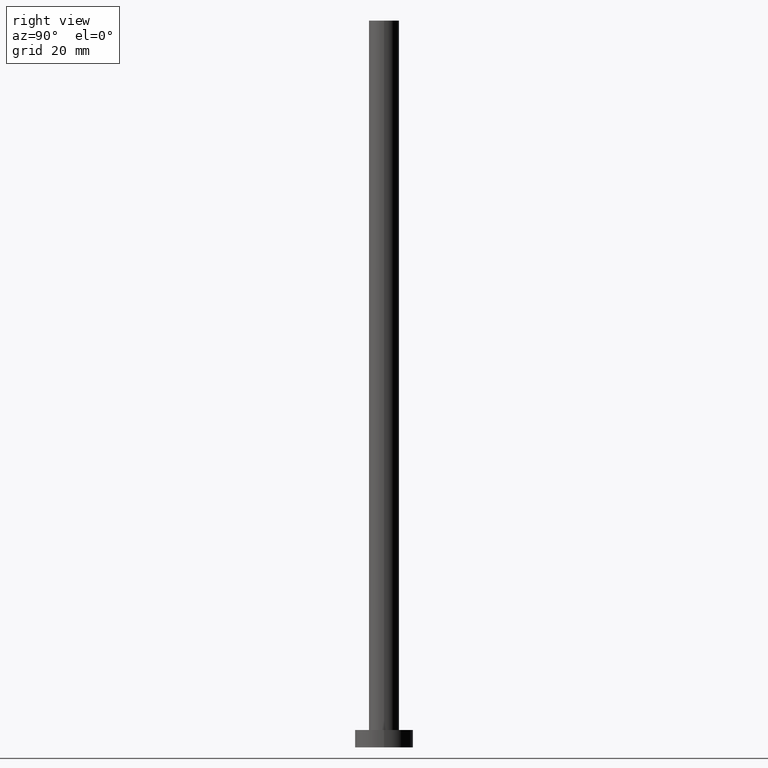
[diagram: clean part render]
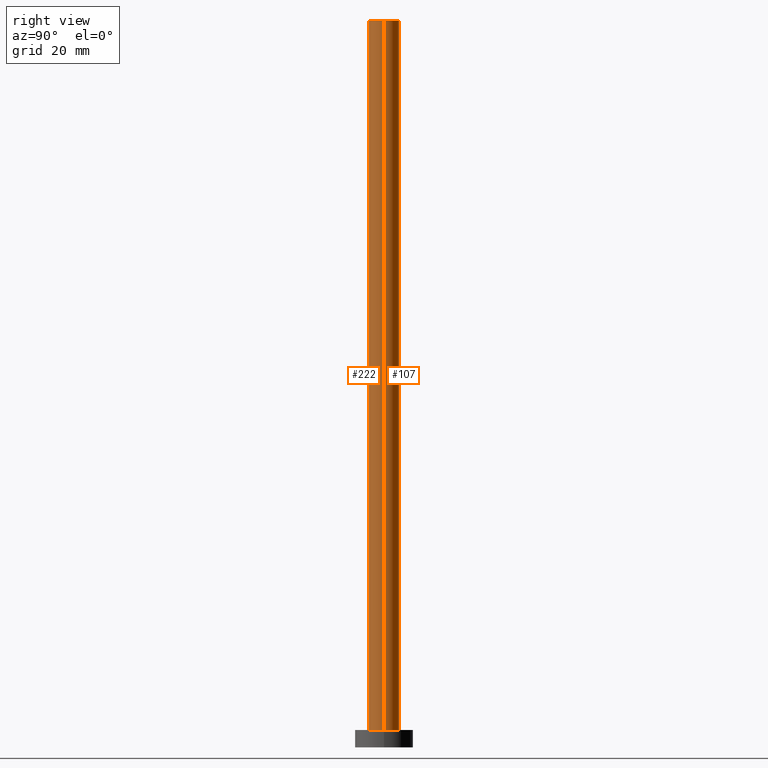
[diagram: same view with one multi-face feature highlighted, each face labeled with its STEP entity id]
A machine part, right view. The highlighted faces form ONE feature: a constant-radius fillet chain: 2 tangent blend faces with common blend radius 2.6 mm. The faces share edges in the B-rep.
Their STEP definitions:
[1] entity #107 (Cylinder):
#6 = AXIS2_PLACEMENT_3D ( 'NONE', #53, #135, #193 ) ;
#19 = DIRECTION ( 'NONE',  ( -0.000000000000000000, -0.000000000000000000, -1.000000000000000000 ) ) ;
#21 = VECTOR ( 'NONE', #19, 1000.000000000000000 ) ;
#30 = VERTEX_POINT ( 'NONE', #186 ) ;
#35 = CARTESIAN_POINT ( 'NONE',  ( -2.600000000000000089, 0.000000000000000000, 125.0000000000000000 ) ) ;
#36 = AXIS2_PLACEMENT_3D ( 'NONE', #71, #226, #130 ) ;
#37 = CARTESIAN_POINT ( 'NONE',  ( 2.600000000000000089, 3.184081677783117698E-16, 3.000000000000000000 ) ) ;
#47 = VERTEX_POINT ( 'NONE', #37 ) ;
#50 = AXIS2_PLACEMENT_3D ( 'NONE', #60, #211, #156 ) ;
#53 = CARTESIAN_POINT ( 'NONE',  ( 0.000000000000000000, 0.000000000000000000, 3.000000000000000000 ) ) ;
#60 = CARTESIAN_POINT ( 'NONE',  ( 0.000000000000000000, 0.000000000000000000, 125.0000000000000000 ) ) ;
#71 = CARTESIAN_POINT ( 'NONE',  ( 0.000000000000000000, 0.000000000000000000, 125.0000000000000000 ) ) ;
#89 = FACE_OUTER_BOUND ( 'NONE', #168, .T. ) ;
#98 = ORIENTED_EDGE ( 'NONE', *, *, #125, .F. ) ;
#107 = ADVANCED_FACE ( 'NONE', ( #89 ), #246, .T. ) ;
#108 = VECTOR ( 'NONE', #254, 1000.000000000000000 ) ;
#117 = CARTESIAN_POINT ( 'NONE',  ( 2.600000000000000089, 3.184081677783117698E-16, 125.0000000000000000 ) ) ;
#120 = ORIENTED_EDGE ( 'NONE', *, *, #167, .T. ) ;
#125 = EDGE_CURVE ( 'NONE', #185, #30, #207, .T. ) ;
#130 = DIRECTION ( 'NONE',  ( -1.000000000000000000, 0.000000000000000000, 0.000000000000000000 ) ) ;
#131 = ORIENTED_EDGE ( 'NONE', *, *, #177, .F. ) ;
#135 = DIRECTION ( 'NONE',  ( 0.000000000000000000, 0.000000000000000000, 1.000000000000000000 ) ) ;
#155 = EDGE_CURVE ( 'NONE', #47, #30, #208, .T. ) ;
#156 = DIRECTION ( 'NONE',  ( 1.000000000000000000, 0.000000000000000000, 0.000000000000000000 ) ) ;
#163 = CIRCLE ( 'NONE', #50, 2.600000000000000089 ) ;
#167 = EDGE_CURVE ( 'NONE', #187, #47, #255, .T. ) ;
#168 = EDGE_LOOP ( 'NONE', ( #131, #120, #192, #98 ) ) ;
#177 = EDGE_CURVE ( 'NONE', #187, #185, #163, .T. ) ;
#185 = VERTEX_POINT ( 'NONE', #195 ) ;
#186 = CARTESIAN_POINT ( 'NONE',  ( -2.600000000000000089, 0.000000000000000000, 3.000000000000000000 ) ) ;
#187 = VERTEX_POINT ( 'NONE', #117 ) ;
#192 = ORIENTED_EDGE ( 'NONE', *, *, #155, .T. ) ;
#193 = DIRECTION ( 'NONE',  ( 1.000000000000000000, 0.000000000000000000, 0.000000000000000000 ) ) ;
#195 = CARTESIAN_POINT ( 'NONE',  ( -2.600000000000000089, 0.000000000000000000, 125.0000000000000000 ) ) ;
#207 = LINE ( 'NONE', #35, #108 ) ;
#208 = CIRCLE ( 'NONE', #6, 2.600000000000000089 ) ;
#211 = DIRECTION ( 'NONE',  ( 0.000000000000000000, 0.000000000000000000, 1.000000000000000000 ) ) ;
#226 = DIRECTION ( 'NONE',  ( -0.000000000000000000, -0.000000000000000000, -1.000000000000000000 ) ) ;
#234 = CARTESIAN_POINT ( 'NONE',  ( 2.600000000000000089, 3.184081677783117698E-16, 125.0000000000000000 ) ) ;
#246 = CYLINDRICAL_SURFACE ( 'NONE', #36, 2.600000000000000089 ) ;
#254 = DIRECTION ( 'NONE',  ( -0.000000000000000000, -0.000000000000000000, -1.000000000000000000 ) ) ;
#255 = LINE ( 'NONE', #234, #21 ) ;
[2] entity #222 (Cylinder):
#5 = CIRCLE ( 'NONE', #147, 2.600000000000000089 ) ;
#16 = DIRECTION ( 'NONE',  ( 0.000000000000000000, 0.000000000000000000, 1.000000000000000000 ) ) ;
#19 = DIRECTION ( 'NONE',  ( -0.000000000000000000, -0.000000000000000000, -1.000000000000000000 ) ) ;
#21 = VECTOR ( 'NONE', #19, 1000.000000000000000 ) ;
#30 = VERTEX_POINT ( 'NONE', #186 ) ;
#35 = CARTESIAN_POINT ( 'NONE',  ( -2.600000000000000089, 0.000000000000000000, 125.0000000000000000 ) ) ;
#37 = CARTESIAN_POINT ( 'NONE',  ( 2.600000000000000089, 3.184081677783117698E-16, 3.000000000000000000 ) ) ;
#38 = EDGE_LOOP ( 'NONE', ( #221, #66, #113, #52 ) ) ;
#47 = VERTEX_POINT ( 'NONE', #37 ) ;
#52 = ORIENTED_EDGE ( 'NONE', *, *, #67, .T. ) ;
#55 = AXIS2_PLACEMENT_3D ( 'NONE', #214, #174, #138 ) ;
#66 = ORIENTED_EDGE ( 'NONE', *, *, #144, .F. ) ;
#67 = EDGE_CURVE ( 'NONE', #30, #47, #5, .T. ) ;
#72 = DIRECTION ( 'NONE',  ( 1.000000000000000000, 0.000000000000000000, 0.000000000000000000 ) ) ;
#87 = CARTESIAN_POINT ( 'NONE',  ( 0.000000000000000000, 0.000000000000000000, 3.000000000000000000 ) ) ;
#108 = VECTOR ( 'NONE', #254, 1000.000000000000000 ) ;
#109 = CARTESIAN_POINT ( 'NONE',  ( 0.000000000000000000, 0.000000000000000000, 125.0000000000000000 ) ) ;
#113 = ORIENTED_EDGE ( 'NONE', *, *, #125, .T. ) ;
#114 = CYLINDRICAL_SURFACE ( 'NONE', #55, 2.600000000000000089 ) ;
#117 = CARTESIAN_POINT ( 'NONE',  ( 2.600000000000000089, 3.184081677783117698E-16, 125.0000000000000000 ) ) ;
#125 = EDGE_CURVE ( 'NONE', #185, #30, #207, .T. ) ;
#136 = FACE_OUTER_BOUND ( 'NONE', #38, .T. ) ;
#138 = DIRECTION ( 'NONE',  ( -1.000000000000000000, 0.000000000000000000, 0.000000000000000000 ) ) ;
#142 = CIRCLE ( 'NONE', #175, 2.600000000000000089 ) ;
#144 = EDGE_CURVE ( 'NONE', #185, #187, #142, .T. ) ;
#147 = AXIS2_PLACEMENT_3D ( 'NONE', #87, #150, #190 ) ;
#150 = DIRECTION ( 'NONE',  ( 0.000000000000000000, 0.000000000000000000, 1.000000000000000000 ) ) ;
#167 = EDGE_CURVE ( 'NONE', #187, #47, #255, .T. ) ;
#174 = DIRECTION ( 'NONE',  ( -0.000000000000000000, -0.000000000000000000, -1.000000000000000000 ) ) ;
#175 = AXIS2_PLACEMENT_3D ( 'NONE', #109, #16, #72 ) ;
#185 = VERTEX_POINT ( 'NONE', #195 ) ;
#186 = CARTESIAN_POINT ( 'NONE',  ( -2.600000000000000089, 0.000000000000000000, 3.000000000000000000 ) ) ;
#187 = VERTEX_POINT ( 'NONE', #117 ) ;
#190 = DIRECTION ( 'NONE',  ( 1.000000000000000000, 0.000000000000000000, 0.000000000000000000 ) ) ;
#195 = CARTESIAN_POINT ( 'NONE',  ( -2.600000000000000089, 0.000000000000000000, 125.0000000000000000 ) ) ;
#207 = LINE ( 'NONE', #35, #108 ) ;
#214 = CARTESIAN_POINT ( 'NONE',  ( 0.000000000000000000, 0.000000000000000000, 125.0000000000000000 ) ) ;
#221 = ORIENTED_EDGE ( 'NONE', *, *, #167, .F. ) ;
#222 = ADVANCED_FACE ( 'NONE', ( #136 ), #114, .T. ) ;
#234 = CARTESIAN_POINT ( 'NONE',  ( 2.600000000000000089, 3.184081677783117698E-16, 125.0000000000000000 ) ) ;
#254 = DIRECTION ( 'NONE',  ( -0.000000000000000000, -0.000000000000000000, -1.000000000000000000 ) ) ;
#255 = LINE ( 'NONE', #234, #21 ) ;